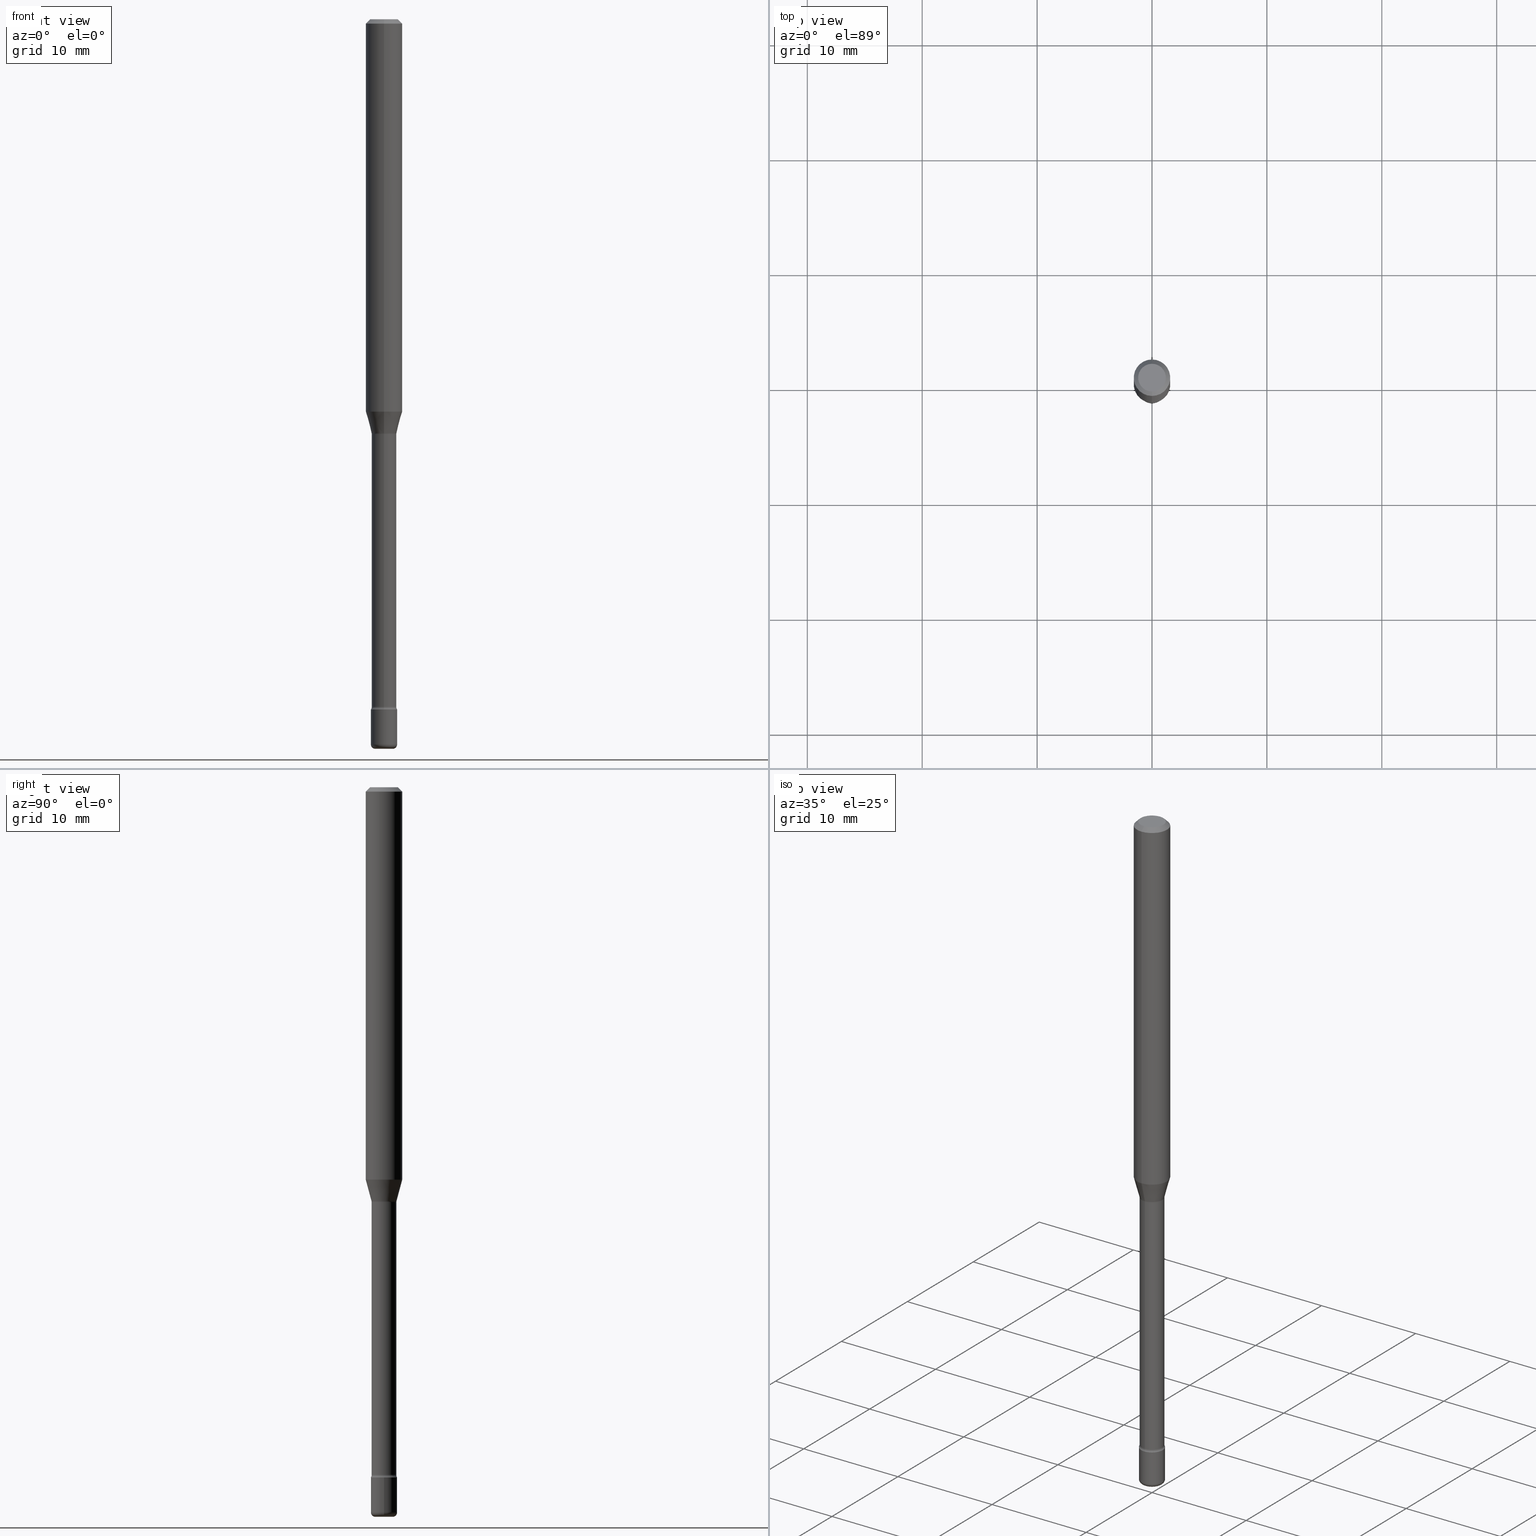
[diagram: canonical four-view strip — front | top / right | iso, engineering-drawing reading convention]
A machine part, canonical four-view strip (front | top / right | iso — engineering-drawing reading convention). The complete STEP part file that produces these views, byte-faithful:
ISO-10303-21;
HEADER;
FILE_DESCRIPTION (( 'STEP AP203' ),
    '1' );
FILE_NAME ('08856.STEP',
    '2024-03-06T20:06:08',
    ( '' ),
    ( '' ),
    'SwSTEP 2.0',
    'SolidWorks 2023',
    '' );
FILE_SCHEMA (( 'CONFIG_CONTROL_DESIGN' ));
ENDSEC;

DATA;
#1 = FACE_OUTER_BOUND ( 'NONE', #365, .T. ) ;
#2 = EDGE_LOOP ( 'NONE', ( #99, #440, #237, #569 ) ) ;
#3 = CARTESIAN_POINT ( 'NONE',  ( 3.840629472727447874E-16, 0.04750000000000000749, -1.929345507921889422E-16 ) ) ;
#4 = CIRCLE ( 'NONE', #549, 0.06250000000000000000 ) ;
#5 =( GEOMETRIC_REPRESENTATION_CONTEXT ( 3 ) GLOBAL_UNCERTAINTY_ASSIGNED_CONTEXT ( ( #46 ) ) GLOBAL_UNIT_ASSIGNED_CONTEXT ( ( #81, #465, #517 ) ) REPRESENTATION_CONTEXT ( 'NONE', 'WORKASPACE' ) );
#6 = EDGE_LOOP ( 'NONE', ( #272, #552 ) ) ;
#7 = CC_DESIGN_PERSON_AND_ORGANIZATION_ASSIGNMENT ( #475, #470, ( #209 ) ) ;
#8 = DIRECTION ( 'NONE',  ( -2.445468806185136597E-29, 3.491481338843145583E-15, 1.000000000000000000 ) ) ;
#9 = ORIENTED_EDGE ( 'NONE', *, *, #148, .F. ) ;
#10 = FACE_OUTER_BOUND ( 'NONE', #107, .T. ) ;
#11 = CYLINDRICAL_SURFACE ( 'NONE', #521, 0.04229999999999999732 ) ;
#12 = CARTESIAN_POINT ( 'NONE',  ( -4.001237614313655264E-16, -0.05730000000000824711, -2.356414547187247077 ) ) ;
#13 = LINE ( 'NONE', #194, #84 ) ;
#14 = CIRCLE ( 'NONE', #21, 0.04499999999999999833 ) ;
#15 = CIRCLE ( 'NONE', #382, 0.01500000000000001853 ) ;
#16 = ADVANCED_FACE ( 'NONE', ( #408 ), #482, .T. ) ;
#17 = CIRCLE ( 'NONE', #426, 0.04281111260566398957 ) ;
#18 = DIRECTION ( 'NONE',  ( -2.445411864812793917E-29, 3.491562882129241838E-15, 1.000000000000000000 ) ) ;
#19 = DIRECTION ( 'NONE',  ( -2.445411864812793917E-29, 3.491562882129241838E-15, 1.000000000000000000 ) ) ;
#20 = DIRECTION ( 'NONE',  ( -2.445411864812793917E-29, 3.491562882129241838E-15, 1.000000000000000000 ) ) ;
#21 = AXIS2_PLACEMENT_3D ( 'NONE', #287, #18, #454 ) ;
#22 = EDGE_CURVE ( 'NONE', #60, #274, #14, .T. ) ;
#23 = DIRECTION ( 'NONE',  ( 2.445411864812793917E-29, -3.491562882129241838E-15, -1.000000000000000000 ) ) ;
#24 = DIRECTION ( 'NONE',  ( -6.982962677686265133E-15, -1.000000000000000000, 6.381165607227957288E-15 ) ) ;
#25 = PLANE ( 'NONE',  #293 ) ;
#26 = VERTEX_POINT ( 'NONE', #185 ) ;
#27 = DIRECTION ( 'NONE',  ( -2.445411864812793637E-29, 3.491562882129241838E-15, 1.000000000000000000 ) ) ;
#28 = EDGE_CURVE ( 'NONE', #349, #506, #13, .T. ) ;
#29 = CALENDAR_DATE ( 2024, 6, 3 ) ;
#30 = AXIS2_PLACEMENT_3D ( 'NONE', #208, #111, #300 ) ;
#31 = CARTESIAN_POINT ( 'NONE',  ( 4.440892098500956497E-16, 0.06249999999999993755, -0.01500000000000024578 ) ) ;
#32 = VERTEX_POINT ( 'NONE', #547 ) ;
#33 = PERSON_AND_ORGANIZATION_ROLE ( 'classification_officer' ) ;
#34 = CARTESIAN_POINT ( 'NONE',  ( -1.169113584055446105E-44, 1.669184350826100908E-30, 4.780733988912460139E-16 ) ) ;
#35 = PERSON_AND_ORGANIZATION_ROLE ( 'creator' ) ;
#36 = DIRECTION ( 'NONE',  ( -2.445411864812793917E-29, 3.491562882129241838E-15, 1.000000000000000000 ) ) ;
#37 = VERTEX_POINT ( 'NONE', #190 ) ;
#38 = COORDINATED_UNIVERSAL_TIME_OFFSET ( 5, 0, .BEHIND. ) ;
#39 = AXIS2_PLACEMENT_3D ( 'NONE', #164, #63, #297 ) ;
#40 = ORIENTED_EDGE ( 'NONE', *, *, #193, .F. ) ;
#41 = DIRECTION ( 'NONE',  ( -2.445411864812793917E-29, 3.491562882129241838E-15, 1.000000000000000000 ) ) ;
#42 = EDGE_LOOP ( 'NONE', ( #40, #304, #347, #83 ) ) ;
#43 = FACE_OUTER_BOUND ( 'NONE', #314, .T. ) ;
#44 = EDGE_LOOP ( 'NONE', ( #480, #221 ) ) ;
#45 = APPROVAL ( #305, 'UNSPECIFIED' ) ;
#46 = UNCERTAINTY_MEASURE_WITH_UNIT (LENGTH_MEASURE( 1.000000000000000082E-05 ), #81, 'distance_accuracy_value', 'NONE');
#47 = CIRCLE ( 'NONE', #504, 0.04499999999999999833 ) ;
#48 = DIRECTION ( 'NONE',  ( -2.445411864812793917E-29, 3.491562882129241838E-15, 1.000000000000000000 ) ) ;
#49 = CIRCLE ( 'NONE', #302, 0.02999999999999999542 ) ;
#50 = ORIENTED_EDGE ( 'NONE', *, *, #212, .F. ) ;
#51 = CYLINDRICAL_SURFACE ( 'NONE', #255, 0.04229999999999999732 ) ;
#52 = DIRECTION ( 'NONE',  ( 1.000000000000000000, -6.982962677686237523E-15, 0.000000000000000000 ) ) ;
#53 = CARTESIAN_POINT ( 'NONE',  ( 6.076989983370064174E-29, -8.676331127025216680E-15, -2.484999999999999876 ) ) ;
#54 = ORIENTED_EDGE ( 'NONE', *, *, #572, .F. ) ;
#55 = DIRECTION ( 'NONE',  ( 1.000000000000000000, -7.105427357601001070E-15, 4.926316507159325352E-29 ) ) ;
#56 = AXIS2_PLACEMENT_3D ( 'NONE', #460, #298, #331 ) ;
#57 = DIRECTION ( 'NONE',  ( -6.982962677686265133E-15, -1.000000000000000000, 3.491562882129241838E-15 ) ) ;
#58 = AXIS2_PLACEMENT_3D ( 'NONE', #88, #36, #220 ) ;
#59 = LOCAL_TIME ( 15, 6, 8.000000000000000000, #344 ) ;
#60 = VERTEX_POINT ( 'NONE', #369 ) ;
#61 = CARTESIAN_POINT ( 'NONE',  ( -4.001237614313882555E-16, -0.05730000000000497196, -1.421974787463810896 ) ) ;
#62 = CC_DESIGN_PERSON_AND_ORGANIZATION_ASSIGNMENT ( #299, #341, ( #277 ) ) ;
#63 = DIRECTION ( 'NONE',  ( -2.445411864812793917E-29, 3.491562882129241838E-15, 1.000000000000000000 ) ) ;
#64 = CIRCLE ( 'NONE', #218, 0.01500000000000001853 ) ;
#65 = LOCAL_TIME ( 15, 6, 8.000000000000000000, #421 ) ;
#66 = DIRECTION ( 'NONE',  ( -6.982962677686263555E-15, -1.000000000000000000, 0.000000000000000000 ) ) ;
#67 = FACE_OUTER_BOUND ( 'NONE', #155, .T. ) ;
#68 = APPLICATION_PROTOCOL_DEFINITION ( 'international standard', 'config_control_design', 1994, #350 ) ;
#69 = CARTESIAN_POINT ( 'NONE',  ( 0.000000000000000000, 0.000000000000000000, 0.000000000000000000 ) ) ;
#70 = EDGE_CURVE ( 'NONE', #394, #130, #47, .T. ) ;
#71 = ORIENTED_EDGE ( 'NONE', *, *, #496, .F. ) ;
#72 = COORDINATED_UNIVERSAL_TIME_OFFSET ( 5, 0, .BEHIND. ) ;
#73 = FACE_OUTER_BOUND ( 'NONE', #6, .T. ) ;
#74 = DATE_AND_TIME ( #556, #229 ) ;
#75 = CIRCLE ( 'NONE', #159, 0.04229999999999999732 ) ;
#76 = CC_DESIGN_APPROVAL ( #45, ( #458 ) ) ;
#77 = CARTESIAN_POINT ( 'NONE',  ( 5.762538269587286723E-29, -8.227377418082795508E-15, -2.356414547187247521 ) ) ;
#78 = EDGE_CURVE ( 'NONE', #269, #80, #253, .T. ) ;
#79 = DIRECTION ( 'NONE',  ( -2.445468806185136597E-29, 3.491481338843145583E-15, 1.000000000000000000 ) ) ;
#80 = VERTEX_POINT ( 'NONE', #373 ) ;
#81 =( CONVERSION_BASED_UNIT ( 'INCH', #217 ) LENGTH_UNIT ( ) NAMED_UNIT ( #563 ) );
#82 = LINE ( 'NONE', #259, #228 ) ;
#83 = ORIENTED_EDGE ( 'NONE', *, *, #534, .F. ) ;
#84 = VECTOR ( 'NONE', #362, 39.37007874015748143 ) ;
#85 = TOROIDAL_SURFACE ( 'NONE', #95, 0.02999999999999999542, 0.01500000000000040364 ) ;
#86 = DIRECTION ( 'NONE',  ( -6.982962677686265922E-15, -1.000000000000000000, 3.491562882129241838E-15 ) ) ;
#87 = EDGE_LOOP ( 'NONE', ( #169, #309, #128, #436 ) ) ;
#88 = CARTESIAN_POINT ( 'NONE',  ( 3.467820229272656090E-29, -4.951359142666238841E-15, -1.418092501787273196 ) ) ;
#89 = ORIENTED_EDGE ( 'NONE', *, *, #534, .T. ) ;
#90 = EDGE_CURVE ( 'NONE', #269, #165, #241, .T. ) ;
#91 = FACE_OUTER_BOUND ( 'NONE', #226, .T. ) ;
#92 = VERTEX_POINT ( 'NONE', #372 ) ;
#93 = VECTOR ( 'NONE', #147, 39.37007874015748143 ) ;
#94 = DIRECTION ( 'NONE',  ( 7.105427357600998703E-15, 1.000000000000000000, 0.000000000000000000 ) ) ;
#95 = AXIS2_PLACEMENT_3D ( 'NONE', #359, #267, #527 ) ;
#96 = CARTESIAN_POINT ( 'NONE',  ( 3.668117797219197392E-31, -5.237344323193873357E-17, -0.01500000000000002720 ) ) ;
#97 = EDGE_CURVE ( 'NONE', #80, #398, #140, .T. ) ;
#98 = CARTESIAN_POINT ( 'NONE',  ( -4.364351673553912750E-16, -0.06250000000000005551, -0.01499999999999981036 ) ) ;
#99 = ORIENTED_EDGE ( 'NONE', *, *, #275, .F. ) ;
#100 = EDGE_CURVE ( 'NONE', #443, #445, #555, .T. ) ;
#101 = CARTESIAN_POINT ( 'NONE',  ( 3.668117797219197392E-31, -5.237344323193873357E-17, -0.01500000000000002720 ) ) ;
#102 = DIRECTION ( 'NONE',  ( -2.445468806185136597E-29, 3.491481338843145583E-15, 1.000000000000000000 ) ) ;
#103 = CARTESIAN_POINT ( 'NONE',  ( 3.005595772265801930E-16, 0.04229999999999504989, -1.421974787463811563 ) ) ;
#104 = AXIS2_PLACEMENT_3D ( 'NONE', #425, #516, #467 ) ;
#105 = DIRECTION ( 'NONE',  ( -2.445468806185136597E-29, 3.491481338843145583E-15, 1.000000000000000000 ) ) ;
#106 = AXIS2_PLACEMENT_3D ( 'NONE', #469, #23, #330 ) ;
#107 = EDGE_LOOP ( 'NONE', ( #477, #548, #9, #71 ) ) ;
#108 = ADVANCED_FACE ( 'NONE', ( #234 ), #11, .T. ) ;
#109 = CARTESIAN_POINT ( 'NONE',  ( 2.094888803306491085E-16, 0.02999999999999126629, -2.500000000000000000 ) ) ;
#110 = EDGE_LOOP ( 'NONE', ( #145, #182, #519, #121 ) ) ;
#111 = DIRECTION ( 'NONE',  ( -2.445411864812793917E-29, 3.491562882129241838E-15, 1.000000000000000000 ) ) ;
#112 = CONICAL_SURFACE ( 'NONE', #58, 0.04281111260566398957, 0.2617993877991505736 ) ;
#113 = APPROVAL_DATE_TIME ( #511, #502 ) ;
#114 = ADVANCED_FACE ( 'NONE', ( #562 ), #25, .F. ) ;
#115 = CYLINDRICAL_SURFACE ( 'NONE', #310, 0.04499999999999999833 ) ;
#116 = APPROVAL_ROLE ( '' ) ;
#117 = DIRECTION ( 'NONE',  ( 2.445411864812793637E-29, -3.491562882129241838E-15, -1.000000000000000000 ) ) ;
#118 = PERSON_AND_ORGANIZATION_ROLE ( 'creator' ) ;
#119 = DIRECTION ( 'NONE',  ( -6.982962677686266711E-15, -1.000000000000000000, 3.491562882129241049E-15 ) ) ;
#120 = EDGE_CURVE ( 'NONE', #443, #37, #434, .T. ) ;
#121 = ORIENTED_EDGE ( 'NONE', *, *, #90, .F. ) ;
#122 = CONICAL_SURFACE ( 'NONE', #106, 0.06250000000000000000, 0.7853981633974480570 ) ;
#123 = AXIS2_PLACEMENT_3D ( 'NONE', #540, #141, #319 ) ;
#124 = DIRECTION ( 'NONE',  ( -2.445411864812793917E-29, 3.491562882129241838E-15, 1.000000000000000000 ) ) ;
#125 = ORIENTED_EDGE ( 'NONE', *, *, #439, .F. ) ;
#126 = EDGE_CURVE ( 'NONE', #130, #394, #132, .T. ) ;
#127 = DIRECTION ( 'NONE',  ( 1.000000000000000000, -6.982962677686266711E-15, 4.876176775795935793E-29 ) ) ;
#128 = ORIENTED_EDGE ( 'NONE', *, *, #496, .T. ) ;
#129 = CARTESIAN_POINT ( 'NONE',  ( 4.071409875905721427E-16, 0.05729999999999503546, -1.421974787463811563 ) ) ;
#130 = VERTEX_POINT ( 'NONE', #201 ) ;
#131 = APPROVAL_DATE_TIME ( #390, #409 ) ;
#132 = CIRCLE ( 'NONE', #206, 0.04499999999999999833 ) ;
#133 = AXIS2_PLACEMENT_3D ( 'NONE', #109, #376, #289 ) ;
#134 = AXIS2_PLACEMENT_3D ( 'NONE', #101, #282, #453 ) ;
#135 = ADVANCED_FACE ( 'NONE', ( #418 ), #342, .T. ) ;
#136 = ORIENTED_EDGE ( 'NONE', *, *, #28, .T. ) ;
#137 = CARTESIAN_POINT ( 'NONE',  ( 3.101519041593414751E-16, 0.04229999999999176780, -2.356414547187247965 ) ) ;
#138 = ORIENTED_EDGE ( 'NONE', *, *, #357, .T. ) ;
#139 = LINE ( 'NONE', #239, #494 ) ;
#140 = LINE ( 'NONE', #231, #93 ) ;
#141 = DIRECTION ( 'NONE',  ( -2.445411864812793917E-29, 3.491562882129241838E-15, 1.000000000000000000 ) ) ;
#142 = CIRCLE ( 'NONE', #435, 0.06250000000000000000 ) ;
#143 = DIRECTION ( 'NONE',  ( 2.445411864812793917E-29, -3.491562882129241838E-15, -1.000000000000000000 ) ) ;
#144 = DIRECTION ( 'NONE',  ( -2.445411864812793917E-29, 3.491562882129241838E-15, 1.000000000000000000 ) ) ;
#145 = ORIENTED_EDGE ( 'NONE', *, *, #512, .F. ) ;
#146 = DIRECTION ( 'NONE',  ( -2.445468806185136597E-29, 3.491481338843145583E-15, 1.000000000000000000 ) ) ;
#147 = DIRECTION ( 'NONE',  ( -4.851104656540962697E-15, -0.7071067811865497932, -0.7071067811865452413 ) ) ;
#148 = EDGE_CURVE ( 'NONE', #26, #37, #529, .T. ) ;
#149 = CARTESIAN_POINT ( 'NONE',  ( 6.620752579593885833E-46, -9.460906030875025688E-32, -2.708531389104991304E-17 ) ) ;
#150 = LOCAL_TIME ( 15, 6, 8.000000000000000000, #72 ) ;
#151 = DIRECTION ( 'NONE',  ( -2.445411864812793917E-29, 3.491562882129241838E-15, 1.000000000000000000 ) ) ;
#152 = EDGE_LOOP ( 'NONE', ( #486, #544, #89, #404 ) ) ;
#153 = DIRECTION ( 'NONE',  ( 6.982962677686265922E-15, 1.000000000000000000, -3.491562882129241838E-15 ) ) ;
#154 = EDGE_CURVE ( 'NONE', #32, #457, #383, .T. ) ;
#155 = EDGE_LOOP ( 'NONE', ( #493, #332 ) ) ;
#156 = DATE_AND_TIME ( #257, #65 ) ;
#157 = CARTESIAN_POINT ( 'NONE',  ( -4.364351673553916201E-16, -0.06250000000000000000, 6.962960790243237274E-16 ) ) ;
#158 = VECTOR ( 'NONE', #192, 39.37007874015748143 ) ;
#159 = AXIS2_PLACEMENT_3D ( 'NONE', #172, #483, #348 ) ;
#160 = MANIFOLD_SOLID_BREP ( 'Body-Move/Copy2[1]', #301 ) ;
#161 = APPLICATION_PROTOCOL_DEFINITION ( 'international standard', 'config_control_design', 1994, #437 ) ;
#162 = EDGE_CURVE ( 'NONE', #26, #130, #422, .T. ) ;
#163 = DIRECTION ( 'NONE',  ( -2.445411864812793917E-29, 3.491562882129241838E-15, 1.000000000000000000 ) ) ;
#164 = CARTESIAN_POINT ( 'NONE',  ( 5.783399060282257641E-29, -8.257546216235657656E-15, -2.365000000000000213 ) ) ;
#165 = VERTEX_POINT ( 'NONE', #31 ) ;
#166 = APPROVAL_ROLE ( '' ) ;
#167 = DIRECTION ( 'NONE',  ( -6.982962677686265922E-15, -1.000000000000000000, 4.370956789862821150E-15 ) ) ;
#168 = CC_DESIGN_DATE_AND_TIME_ASSIGNMENT ( #211, #214, ( #327 ) ) ;
#169 = ORIENTED_EDGE ( 'NONE', *, *, #120, .F. ) ;
#170 = DATE_TIME_ROLE ( 'creation_date' ) ;
#171 = ORGANIZATION ( 'UNSPECIFIED', 'UNSPECIFIED', '' ) ;
#172 = CARTESIAN_POINT ( 'NONE',  ( 5.762404092109162712E-29, -8.227569567868378496E-15, -2.356414547187247521 ) ) ;
#173 = ORIENTED_EDGE ( 'NONE', *, *, #271, .T. ) ;
#174 = MANIFOLD_SOLID_BREP ( 'Body-Move/Copy2[2]', #334 ) ;
#175 = DIRECTION ( 'NONE',  ( -6.982962677686265922E-15, -1.000000000000000000, 3.491562882129241838E-15 ) ) ;
#176 = ORIENTED_EDGE ( 'NONE', *, *, #78, .F. ) ;
#177 = ADVANCED_FACE ( 'NONE', ( #73 ), #244, .F. ) ;
#178 = CARTESIAN_POINT ( 'NONE',  ( 0.000000000000000000, 0.000000000000000000, 0.000000000000000000 ) ) ;
#179 = ORIENTED_EDGE ( 'NONE', *, *, #28, .F. ) ;
#180 = AXIS2_PLACEMENT_3D ( 'NONE', #245, #151, #419 ) ;
#181 = AXIS2_PLACEMENT_3D ( 'NONE', #322, #364, #499 ) ;
#182 = ORIENTED_EDGE ( 'NONE', *, *, #97, .T. ) ;
#183 = ADVANCED_FACE ( 'NONE', ( #558 ), #568, .T. ) ;
#184 = LINE ( 'NONE', #230, #522 ) ;
#185 = CARTESIAN_POINT ( 'NONE',  ( 0.04500000000000019956, -8.990564447521098367E-15, -2.484999999999999876 ) ) ;
#186 = DIRECTION ( 'NONE',  ( -2.445411864812793917E-29, 3.491562882129241838E-15, 1.000000000000000000 ) ) ;
#187 = CARTESIAN_POINT ( 'NONE',  ( -1.169113584055446105E-44, 1.669184350826100908E-30, 4.780733988912460139E-16 ) ) ;
#188 = DIRECTION ( 'NONE',  ( -1.000000000000000000, 6.982962677686265922E-15, -4.883557194083112340E-29 ) ) ;
#189 = TOROIDAL_SURFACE ( 'NONE', #326, 0.05730000000000000371, 0.01500000000000002373 ) ;
#190 = CARTESIAN_POINT ( 'NONE',  ( -0.04500000000000019956, -8.356586895933170524E-15, -2.484999999999999876 ) ) ;
#191 = DIRECTION ( 'NONE',  ( -2.445411864812793917E-29, 3.491562882129241838E-15, 1.000000000000000000 ) ) ;
#192 = DIRECTION ( 'NONE',  ( 4.937700262164546464E-15, 0.7071067811865449082, -0.7071067811865501263 ) ) ;
#193 = EDGE_CURVE ( 'NONE', #349, #286, #393, .T. ) ;
#194 = CARTESIAN_POINT ( 'NONE',  ( 3.005595772265223103E-16, 0.04229999999999999732, 3.303802889771791745E-16 ) ) ;
#195 = CARTESIAN_POINT ( 'NONE',  ( -2.989484015155409328E-16, -0.04281111260566893700, -1.418092501787272974 ) ) ;
#196 = VECTOR ( 'NONE', #386, 39.37007874015748143 ) ;
#197 = EDGE_CURVE ( 'NONE', #457, #398, #415, .T. ) ;
#198 = CARTESIAN_POINT ( 'NONE',  ( -0.04499999999999999833, 3.197442310920450718E-16, -2.213520790614707560E-30 ) ) ;
#199 = ORIENTED_EDGE ( 'NONE', *, *, #197, .F. ) ;
#200 = CARTESIAN_POINT ( 'NONE',  ( 3.741402302838760433E-16, 0.04281111260565903520, -1.418092501787273418 ) ) ;
#201 = CARTESIAN_POINT ( 'NONE',  ( 0.04499999999999999833, -8.571586686859921733E-15, -2.365000000000000213 ) ) ;
#202 = CC_DESIGN_PERSON_AND_ORGANIZATION_ASSIGNMENT ( #478, #33, ( #327 ) ) ;
#203 = PRODUCT_DEFINITION_SHAPE ( 'NONE', 'NONE',  #458 ) ;
#204 = APPROVAL_DATE_TIME ( #74, #45 ) ;
#205 = FACE_OUTER_BOUND ( 'NONE', #110, .T. ) ;
#206 = AXIS2_PLACEMENT_3D ( 'NONE', #294, #553, #551 ) ;
#207 = CIRCLE ( 'NONE', #532, 0.01500000000000001853 ) ;
#208 = CARTESIAN_POINT ( 'NONE',  ( 3.467820229272656090E-29, -4.951359142666238841E-15, -1.418092501787273196 ) ) ;
#209 = PRODUCT ( '08856', '08856', '', ( #249 ) ) ;
#210 = ORIENTED_EDGE ( 'NONE', *, *, #392, .T. ) ;
#211 = DATE_AND_TIME ( #29, #487 ) ;
#212 = EDGE_CURVE ( 'NONE', #37, #394, #507, .T. ) ;
#213 = DIRECTION ( 'NONE',  ( -6.982962677686265922E-15, -1.000000000000000000, 3.491562882129242627E-15 ) ) ;
#214 = DATE_TIME_ROLE ( 'classification_date' ) ;
#215 = DIRECTION ( 'NONE',  ( -2.445411864812793917E-29, 3.491562882129241838E-15, 1.000000000000000000 ) ) ;
#216 = ORIENTED_EDGE ( 'NONE', *, *, #447, .T. ) ;
#217 = LENGTH_MEASURE_WITH_UNIT ( LENGTH_MEASURE( 0.02539999999999999897 ), #313 );
#218 = AXIS2_PLACEMENT_3D ( 'NONE', #451, #55, #94 ) ;
#219 = AXIS2_PLACEMENT_3D ( 'NONE', #385, #515, #261 ) ;
#220 = DIRECTION ( 'NONE',  ( -6.982962677686265133E-15, -1.000000000000000000, 6.381165607227957288E-15 ) ) ;
#221 = ORIENTED_EDGE ( 'NONE', *, *, #512, .T. ) ;
#222 = ADVANCED_FACE ( 'NONE', ( #205 ), #122, .T. ) ;
#223 = DIRECTION ( 'NONE',  ( -6.982962677686265922E-15, -1.000000000000000000, 3.491562882129241838E-15 ) ) ;
#224 = ORIENTED_EDGE ( 'NONE', *, *, #427, .F. ) ;
#225 = CYLINDRICAL_SURFACE ( 'NONE', #463, 0.06250000000000000000 ) ;
#226 = EDGE_LOOP ( 'NONE', ( #320, #508 ) ) ;
#227 = ADVANCED_FACE ( 'NONE', ( #67 ), #379, .T. ) ;
#228 = VECTOR ( 'NONE', #530, 39.37007874015748143 ) ;
#229 = LOCAL_TIME ( 15, 6, 8.000000000000000000, #38 ) ;
#230 = CARTESIAN_POINT ( 'NONE',  ( 3.041912507176566342E-16, 0.04281111260565903520, -1.418092501787273418 ) ) ;
#231 = CARTESIAN_POINT ( 'NONE',  ( -4.287811248607203282E-16, -0.06250000000000005551, -0.01499999999999981036 ) ) ;
#232 = EDGE_CURVE ( 'NONE', #274, #60, #374, .T. ) ;
#233 = DIRECTION ( 'NONE',  ( -6.982962677686266711E-15, -1.000000000000000000, 3.491562882129241049E-15 ) ) ;
#234 = FACE_OUTER_BOUND ( 'NONE', #533, .T. ) ;
#235 = SHAPE_DEFINITION_REPRESENTATION ( #203, #564 ) ;
#236 = DIRECTION ( 'NONE',  ( 1.000000000000000000, -6.982962677686209124E-15, 0.000000000000000000 ) ) ;
#237 = ORIENTED_EDGE ( 'NONE', *, *, #242, .T. ) ;
#238 = AXIS2_PLACEMENT_3D ( 'NONE', #61, #248, #335 ) ;
#239 = CARTESIAN_POINT ( 'NONE',  ( -2.953793212661290535E-16, -0.04229999999999999732, 6.257665088053130012E-16 ) ) ;
#240 = AXIS2_PLACEMENT_3D ( 'NONE', #340, #27, #377 ) ;
#241 = LINE ( 'NONE', #459, #158 ) ;
#242 = EDGE_CURVE ( 'NONE', #32, #312, #484, .T. ) ;
#243 = DIRECTION ( 'NONE',  ( 1.000000000000000000, -6.982962677686269077E-15, 0.000000000000000000 ) ) ;
#244 = PLANE ( 'NONE',  #240 ) ;
#245 = CARTESIAN_POINT ( 'NONE',  ( 5.762404092109162712E-29, -8.227569567868378496E-15, -2.356414547187247521 ) ) ;
#246 = AXIS2_PLACEMENT_3D ( 'NONE', #316, #407, #273 ) ;
#247 = DIRECTION ( 'NONE',  ( -6.982962677686265133E-15, -1.000000000000000000, 3.491562882129241838E-15 ) ) ;
#248 = DIRECTION ( 'NONE',  ( -1.000000000000000000, 6.982962677686265922E-15, -4.883557194083112340E-29 ) ) ;
#249 = MECHANICAL_CONTEXT ( 'NONE', #350, 'mechanical' ) ;
#250 = CARTESIAN_POINT ( 'NONE',  ( -1.169113584055446105E-44, 1.669184350826100908E-30, 4.780733988912460139E-16 ) ) ;
#251 = CALENDAR_DATE ( 2024, 6, 3 ) ;
#252 = CARTESIAN_POINT ( 'NONE',  ( 3.316907271900976589E-16, 0.04750000000000000749, 5.964480559895911369E-17 ) ) ;
#253 = CIRCLE ( 'NONE', #455, 0.04750000000000000749 ) ;
#254 = TOROIDAL_SURFACE ( 'NONE', #276, 0.05730000000000001759, 0.01500000000000001506 ) ;
#255 = AXIS2_PLACEMENT_3D ( 'NONE', #368, #444, #233 ) ;
#256 = ADVANCED_FACE ( 'NONE', ( #514 ), #115, .T. ) ;
#257 = CALENDAR_DATE ( 2024, 6, 3 ) ;
#258 = CARTESIAN_POINT ( 'NONE',  ( 3.197442310921029545E-16, 0.04499999999999174799, -2.365000000000000213 ) ) ;
#259 = CARTESIAN_POINT ( 'NONE',  ( 4.440892098500625669E-16, 0.06250000000000000000, 2.598507187581684484E-16 ) ) ;
#260 = ORIENTED_EDGE ( 'NONE', *, *, #197, .T. ) ;
#261 = DIRECTION ( 'NONE',  ( 1.000000000000000000, 0.000000000000000000, 0.000000000000000000 ) ) ;
#262 = ADVANCED_FACE ( 'NONE', ( #535 ), #112, .T. ) ;
#263 = DIRECTION ( 'NONE',  ( -2.445411864812793917E-29, 3.491562882129241838E-15, 1.000000000000000000 ) ) ;
#264 = ORIENTED_EDGE ( 'NONE', *, *, #162, .F. ) ;
#265 = AXIS2_PLACEMENT_3D ( 'NONE', #96, #143, #413 ) ;
#266 = AXIS2_PLACEMENT_3D ( 'NONE', #411, #186, #247 ) ;
#267 = DIRECTION ( 'NONE',  ( -2.445468806185136597E-29, 3.491481338843145583E-15, 1.000000000000000000 ) ) ;
#268 = EDGE_CURVE ( 'NONE', #312, #506, #410, .T. ) ;
#269 = VERTEX_POINT ( 'NONE', #3 ) ;
#270 = DIRECTION ( 'NONE',  ( -2.445411864812793917E-29, 3.491562882129241838E-15, 1.000000000000000000 ) ) ;
#271 = EDGE_CURVE ( 'NONE', #92, #165, #82, .T. ) ;
#272 = ORIENTED_EDGE ( 'NONE', *, *, #22, .F. ) ;
#273 = DIRECTION ( 'NONE',  ( 1.000000000000000000, -6.982962677686265922E-15, 4.876176775795935793E-29 ) ) ;
#274 = VERTEX_POINT ( 'NONE', #258 ) ;
#275 = EDGE_CURVE ( 'NONE', #567, #506, #15, .T. ) ;
#276 = AXIS2_PLACEMENT_3D ( 'NONE', #388, #263, #175 ) ;
#277 = PRODUCT_DEFINITION_FORMATION_WITH_SPECIFIED_SOURCE ( 'ANY', '', #209, .NOT_KNOWN. ) ;
#278 = FACE_OUTER_BOUND ( 'NONE', #524, .T. ) ;
#279 = ORIENTED_EDGE ( 'NONE', *, *, #268, .F. ) ;
#280 = CARTESIAN_POINT ( 'NONE',  ( -0.02999999999999999542, -8.436063711156501822E-15, -2.500000000000000000 ) ) ;
#281 = ORIENTED_EDGE ( 'NONE', *, *, #321, .T. ) ;
#282 = DIRECTION ( 'NONE',  ( -2.445411864812793917E-29, 3.491562882129241838E-15, 1.000000000000000000 ) ) ;
#283 = ADVANCED_FACE ( 'NONE', ( #488 ), #254, .F. ) ;
#284 = ORIENTED_EDGE ( 'NONE', *, *, #148, .T. ) ;
#285 = CIRCLE ( 'NONE', #366, 0.01500000000000040364 ) ;
#286 = VERTEX_POINT ( 'NONE', #570 ) ;
#287 = CARTESIAN_POINT ( 'NONE',  ( 5.783399060282257641E-29, -8.257546216235657656E-15, -2.365000000000000213 ) ) ;
#288 = EDGE_CURVE ( 'NONE', #165, #398, #346, .T. ) ;
#289 = DIRECTION ( 'NONE',  ( -1.000000000000000000, 6.982962677686265922E-15, -4.876176775795935793E-29 ) ) ;
#290 = ORIENTED_EDGE ( 'NONE', *, *, #242, .F. ) ;
#291 = DIRECTION ( 'NONE',  ( 1.000000000000000000, -6.982962677686237523E-15, 0.000000000000000000 ) ) ;
#292 = CC_DESIGN_DATE_AND_TIME_ASSIGNMENT ( #156, #170, ( #458 ) ) ;
#293 = AXIS2_PLACEMENT_3D ( 'NONE', #252, #117, #153 ) ;
#294 = CARTESIAN_POINT ( 'NONE',  ( 5.783533726627847872E-29, -8.257353366364040046E-15, -2.365000000000000213 ) ) ;
#295 = AXIS2_PLACEMENT_3D ( 'NONE', #53, #146, #449 ) ;
#296 = PERSON_AND_ORGANIZATION ( #329, #171 ) ;
#297 = DIRECTION ( 'NONE',  ( -6.982962677686265133E-15, -1.000000000000000000, 6.070773319253918263E-15 ) ) ;
#298 = DIRECTION ( 'NONE',  ( 7.105427357601001859E-15, 1.000000000000000000, -3.491481338843145583E-15 ) ) ;
#299 = PERSON_AND_ORGANIZATION ( #329, #171 ) ;
#300 = DIRECTION ( 'NONE',  ( -6.982962677686265133E-15, -1.000000000000000000, 6.381165607227957288E-15 ) ) ;
#301 = CLOSED_SHELL ( 'NONE', ( #256, #481, #466, #227, #315, #375 ) ) ;
#302 = AXIS2_PLACEMENT_3D ( 'NONE', #403, #8, #291 ) ;
#303 = DIRECTION ( 'NONE',  ( 7.105427357601001859E-15, 1.000000000000000000, 0.000000000000000000 ) ) ;
#304 = ORIENTED_EDGE ( 'NONE', *, *, #474, .T. ) ;
#305 = APPROVAL_STATUS ( 'not_yet_approved' ) ;
#306 = DIRECTION ( 'NONE',  ( 1.000000000000000000, -6.982962677686266711E-15, 4.876176775795935793E-29 ) ) ;
#307 = ORIENTED_EDGE ( 'NONE', *, *, #275, .T. ) ;
#308 = DIRECTION ( 'NONE',  ( -2.445411864812793917E-29, 3.491562882129241838E-15, 1.000000000000000000 ) ) ;
#309 = ORIENTED_EDGE ( 'NONE', *, *, #100, .T. ) ;
#310 = AXIS2_PLACEMENT_3D ( 'NONE', #69, #79, #127 ) ;
#311 = CARTESIAN_POINT ( 'NONE',  ( 3.467820229272656090E-29, -4.951359142666238841E-15, -1.418092501787273196 ) ) ;
#312 = VERTEX_POINT ( 'NONE', #353 ) ;
#313 =( LENGTH_UNIT ( ) NAMED_UNIT ( * ) SI_UNIT ( $, .METRE. ) );
#314 = EDGE_LOOP ( 'NONE', ( #216, #173, #54, #199 ) ) ;
#315 = ADVANCED_FACE ( 'NONE', ( #433 ), #85, .T. ) ;
#316 = CARTESIAN_POINT ( 'NONE',  ( 5.783533726627847872E-29, -8.257353366364040046E-15, -2.365000000000000213 ) ) ;
#317 = ORIENTED_EDGE ( 'NONE', *, *, #288, .F. ) ;
#318 = AXIS2_PLACEMENT_3D ( 'NONE', #77, #41, #223 ) ;
#319 = DIRECTION ( 'NONE',  ( -6.982962677686265922E-15, -1.000000000000000000, 3.491562882129241838E-15 ) ) ;
#320 = ORIENTED_EDGE ( 'NONE', *, *, #126, .T. ) ;
#321 = EDGE_CURVE ( 'NONE', #92, #457, #4, .T. ) ;
#322 = CARTESIAN_POINT ( 'NONE',  ( 6.076989983370064174E-29, -8.676331127025216680E-15, -2.484999999999999876 ) ) ;
#323 = ORIENTED_EDGE ( 'NONE', *, *, #162, .T. ) ;
#324 = CARTESIAN_POINT ( 'NONE',  ( 0.02999999999999999542, -8.885820007355803419E-15, -2.484999999999999876 ) ) ;
#325 = ORIENTED_EDGE ( 'NONE', *, *, #70, .F. ) ;
#326 = AXIS2_PLACEMENT_3D ( 'NONE', #431, #476, #86 ) ;
#327 = SECURITY_CLASSIFICATION ( '', '', #428 ) ;
#328 = DIRECTION ( 'NONE',  ( -2.445411864812793917E-29, 3.491562882129241838E-15, 1.000000000000000000 ) ) ;
#329 = PERSON ( 'UNSPECIFIED', 'UNSPECIFIED', 'UNSPECIFIED', ('UNSPECIFIED'), ('UNSPECIFIED'), ('UNSPECIFIED') ) ;
#330 = DIRECTION ( 'NONE',  ( 6.982962677686265922E-15, 1.000000000000000000, -3.483106191921935554E-15 ) ) ;
#331 = DIRECTION ( 'NONE',  ( -1.000000000000000000, 7.105427357600993970E-15, 0.000000000000000000 ) ) ;
#332 = ORIENTED_EDGE ( 'NONE', *, *, #100, .F. ) ;
#333 = APPROVAL_ROLE ( '' ) ;
#334 = CLOSED_SHELL ( 'NONE', ( #546, #108, #358, #222, #380, #183, #262, #135, #16, #114, #177, #283, #545, #337 ) ) ;
#335 = DIRECTION ( 'NONE',  ( -6.982962677686267499E-15, -1.000000000000000000, 0.000000000000000000 ) ) ;
#336 = APPROVAL_PERSON_ORGANIZATION ( #387, #409, #166 ) ;
#337 = ADVANCED_FACE ( 'NONE', ( #442 ), #189, .F. ) ;
#338 = PERSON_AND_ORGANIZATION ( #329, #171 ) ;
#339 = EDGE_CURVE ( 'NONE', #286, #349, #75, .T. ) ;
#340 = CARTESIAN_POINT ( 'NONE',  ( 3.142333204959397663E-16, 0.04499999999999174105, -2.365000000000000213 ) ) ;
#341 = PERSON_AND_ORGANIZATION_ROLE ( 'design_supplier' ) ;
#342 = CYLINDRICAL_SURFACE ( 'NONE', #355, 0.06250000000000000000 ) ;
#343 = ORIENTED_EDGE ( 'NONE', *, *, #97, .F. ) ;
#344 = COORDINATED_UNIVERSAL_TIME_OFFSET ( 5, 0, .BEHIND. ) ;
#345 = DIRECTION ( 'NONE',  ( -2.445468806185136597E-29, 3.491481338843145583E-15, 1.000000000000000000 ) ) ;
#346 = CIRCLE ( 'NONE', #456, 0.06250000000000000000 ) ;
#347 = ORIENTED_EDGE ( 'NONE', *, *, #232, .T. ) ;
#348 = DIRECTION ( 'NONE',  ( -6.982962677686266711E-15, -1.000000000000000000, 6.458269488567998169E-15 ) ) ;
#349 = VERTEX_POINT ( 'NONE', #137 ) ;
#350 = APPLICATION_CONTEXT ( 'configuration controlled 3d designs of mechanical parts and assemblies' ) ;
#351 = CARTESIAN_POINT ( 'NONE',  ( 3.288131541270923736E-29, -4.694799353130180945E-15, -1.344612573687109069 ) ) ;
#352 = ORIENTED_EDGE ( 'NONE', *, *, #288, .T. ) ;
#353 = CARTESIAN_POINT ( 'NONE',  ( -2.953793212660943436E-16, -0.04230000000000497945, -1.421974787463810896 ) ) ;
#354 = EDGE_LOOP ( 'NONE', ( #343, #176, #498, #352 ) ) ;
#355 = AXIS2_PLACEMENT_3D ( 'NONE', #250, #163, #509 ) ;
#356 = VECTOR ( 'NONE', #554, 39.37007874015748143 ) ;
#357 = EDGE_CURVE ( 'NONE', #32, #567, #485, .T. ) ;
#358 = ADVANCED_FACE ( 'NONE', ( #472 ), #401, .F. ) ;
#359 = CARTESIAN_POINT ( 'NONE',  ( 6.076989983370064174E-29, -8.676331127025216680E-15, -2.484999999999999876 ) ) ;
#360 = EDGE_LOOP ( 'NONE', ( #491, #281, #260, #317 ) ) ;
#361 = CARTESIAN_POINT ( 'NONE',  ( 0.02999999999999999542, -8.938192227438451682E-15, -2.500000000000000000 ) ) ;
#362 = DIRECTION ( 'NONE',  ( -2.445411864812793917E-29, 3.491562882129241838E-15, 1.000000000000000000 ) ) ;
#363 = DESIGN_CONTEXT ( 'detailed design', #437, 'design' ) ;
#364 = DIRECTION ( 'NONE',  ( -2.445468806185136597E-29, 3.491481338843145583E-15, 1.000000000000000000 ) ) ;
#365 = EDGE_LOOP ( 'NONE', ( #50, #500, #323, #325 ) ) ;
#366 = AXIS2_PLACEMENT_3D ( 'NONE', #324, #501, #236 ) ;
#367 = CC_DESIGN_SECURITY_CLASSIFICATION ( #327, ( #277 ) ) ;
#368 = CARTESIAN_POINT ( 'NONE',  ( -1.169113584055446105E-44, 1.669184350826100908E-30, 4.780733988912460139E-16 ) ) ;
#369 = CARTESIAN_POINT ( 'NONE',  ( -3.142333204958241982E-16, -0.04500000000000827644, -2.364999999999999769 ) ) ;
#370 = CC_DESIGN_PERSON_AND_ORGANIZATION_ASSIGNMENT ( #338, #35, ( #458 ) ) ;
#371 = DIRECTION ( 'NONE',  ( -6.982962677686265133E-15, -1.000000000000000000, 6.458269488567996591E-15 ) ) ;
#372 = CARTESIAN_POINT ( 'NONE',  ( 4.440892098500956497E-16, 0.06249999999999533706, -1.344612573687109514 ) ) ;
#373 = CARTESIAN_POINT ( 'NONE',  ( -3.773273898774340269E-16, -0.04750000000000000749, 1.387639230100891162E-16 ) ) ;
#374 = CIRCLE ( 'NONE', #39, 0.04499999999999999833 ) ;
#375 = ADVANCED_FACE ( 'NONE', ( #1 ), #525, .T. ) ;
#376 = DIRECTION ( 'NONE',  ( 2.438088387897960049E-29, -3.491481338843145188E-15, -1.000000000000000000 ) ) ;
#377 = DIRECTION ( 'NONE',  ( -6.982962677686265922E-15, -1.000000000000000000, 3.491562882129241838E-15 ) ) ;
#378 = DIRECTION ( 'NONE',  ( -6.982962677686265922E-15, -1.000000000000000000, 4.370956789862821150E-15 ) ) ;
#379 = PLANE ( 'NONE',  #133 ) ;
#380 = ADVANCED_FACE ( 'NONE', ( #43 ), #225, .T. ) ;
#381 = PERSON_AND_ORGANIZATION ( #329, #171 ) ;
#382 = AXIS2_PLACEMENT_3D ( 'NONE', #129, #391, #303 ) ;
#383 = LINE ( 'NONE', #195, #424 ) ;
#384 = APPROVAL_PERSON_ORGANIZATION ( #381, #502, #333 ) ;
#385 = CARTESIAN_POINT ( 'NONE',  ( 0.000000000000000000, 0.000000000000000000, 0.000000000000000000 ) ) ;
#386 = DIRECTION ( 'NONE',  ( -2.445468806185136877E-29, 3.491481338843145188E-15, 1.000000000000000000 ) ) ;
#387 = PERSON_AND_ORGANIZATION ( #329, #171 ) ;
#388 = CARTESIAN_POINT ( 'NONE',  ( 5.762538269587286723E-29, -8.227377418082795508E-15, -2.356414547187247521 ) ) ;
#389 = ORIENTED_EDGE ( 'NONE', *, *, #439, .T. ) ;
#390 = DATE_AND_TIME ( #520, #59 ) ;
#391 = DIRECTION ( 'NONE',  ( 1.000000000000000000, -7.105427357601001070E-15, 4.926316507159325352E-29 ) ) ;
#392 = EDGE_CURVE ( 'NONE', #506, #312, #416, .T. ) ;
#393 = CIRCLE ( 'NONE', #180, 0.04229999999999999732 ) ;
#394 = VERTEX_POINT ( 'NONE', #490 ) ;
#395 = DIRECTION ( 'NONE',  ( -2.445411864812793917E-29, 3.491562882129241838E-15, 1.000000000000000000 ) ) ;
#396 = EDGE_LOOP ( 'NONE', ( #224, #432, #528, #526 ) ) ;
#397 = CARTESIAN_POINT ( 'NONE',  ( 3.477314016728655540E-29, -4.964914387232260657E-15, -1.421974787463811118 ) ) ;
#398 = VERTEX_POINT ( 'NONE', #98 ) ;
#399 = DIRECTION ( 'NONE',  ( -6.982962677686265133E-15, -1.000000000000000000, 6.458269488567996591E-15 ) ) ;
#400 = ORIENTED_EDGE ( 'NONE', *, *, #154, .F. ) ;
#401 = TOROIDAL_SURFACE ( 'NONE', #318, 0.05730000000000001759, 0.01500000000000001506 ) ;
#402 = CC_DESIGN_APPROVAL ( #409, ( #327 ) ) ;
#403 = CARTESIAN_POINT ( 'NONE',  ( 6.113672015462842613E-29, -8.728703347107864943E-15, -2.500000000000000000 ) ) ;
#404 = ORIENTED_EDGE ( 'NONE', *, *, #22, .T. ) ;
#405 = CARTESIAN_POINT ( 'NONE',  ( -4.364351673553584879E-16, -0.06250000000000466294, -1.344612573687108847 ) ) ;
#406 = ORIENTED_EDGE ( 'NONE', *, *, #447, .F. ) ;
#407 = DIRECTION ( 'NONE',  ( -2.438088387897960049E-29, 3.491481338843145188E-15, 1.000000000000000000 ) ) ;
#408 = FACE_OUTER_BOUND ( 'NONE', #354, .T. ) ;
#409 = APPROVAL ( #565, 'UNSPECIFIED' ) ;
#410 = CIRCLE ( 'NONE', #505, 0.04230000000000001120 ) ;
#411 = CARTESIAN_POINT ( 'NONE',  ( 6.620752579593885833E-46, -9.460906030875025688E-32, -2.708531389104991304E-17 ) ) ;
#412 = ORIENTED_EDGE ( 'NONE', *, *, #560, .F. ) ;
#413 = DIRECTION ( 'NONE',  ( 6.982962677686265922E-15, 1.000000000000000000, -3.483106191921935554E-15 ) ) ;
#414 = EDGE_CURVE ( 'NONE', #445, #443, #49, .T. ) ;
#415 = LINE ( 'NONE', #157, #557 ) ;
#416 = CIRCLE ( 'NONE', #531, 0.04230000000000001120 ) ;
#417 = TOROIDAL_SURFACE ( 'NONE', #123, 0.05730000000000000371, 0.01500000000000002373 ) ;
#418 = FACE_OUTER_BOUND ( 'NONE', #360, .T. ) ;
#419 = DIRECTION ( 'NONE',  ( -6.982962677686266711E-15, -1.000000000000000000, 6.458269488567998169E-15 ) ) ;
#420 = ORIENTED_EDGE ( 'NONE', *, *, #126, .F. ) ;
#421 = COORDINATED_UNIVERSAL_TIME_OFFSET ( 5, 0, .BEHIND. ) ;
#422 = LINE ( 'NONE', #518, #356 ) ;
#423 = COORDINATED_UNIVERSAL_TIME_OFFSET ( 5, 0, .BEHIND. ) ;
#424 = VECTOR ( 'NONE', #464, 39.37007874015748854 ) ;
#425 = CARTESIAN_POINT ( 'NONE',  ( 6.076989983370064174E-29, -8.676331127025216680E-15, -2.484999999999999876 ) ) ;
#426 = AXIS2_PLACEMENT_3D ( 'NONE', #543, #144, #24 ) ;
#427 = EDGE_CURVE ( 'NONE', #567, #92, #184, .T. ) ;
#428 = SECURITY_CLASSIFICATION_LEVEL ( 'unclassified' ) ;
#429 = CARTESIAN_POINT ( 'NONE',  ( 3.668117797219197392E-31, -5.237344323193873357E-17, -0.01500000000000002720 ) ) ;
#430 = PERSON_AND_ORGANIZATION ( #329, #171 ) ;
#431 = CARTESIAN_POINT ( 'NONE',  ( 3.477394985924490148E-29, -4.964798434735345074E-15, -1.421974787463811118 ) ) ;
#432 = ORIENTED_EDGE ( 'NONE', *, *, #560, .T. ) ;
#433 = FACE_OUTER_BOUND ( 'NONE', #87, .T. ) ;
#434 = CIRCLE ( 'NONE', #56, 0.01500000000000040364 ) ;
#435 = AXIS2_PLACEMENT_3D ( 'NONE', #497, #48, #378 ) ;
#436 = ORIENTED_EDGE ( 'NONE', *, *, #561, .F. ) ;
#437 = APPLICATION_CONTEXT ( 'configuration controlled 3d designs of mechanical parts and assemblies' ) ;
#438 = DIRECTION ( 'NONE',  ( -6.982962677686265133E-15, -1.000000000000000000, 6.381165607227957288E-15 ) ) ;
#439 = EDGE_CURVE ( 'NONE', #286, #312, #139, .T. ) ;
#440 = ORIENTED_EDGE ( 'NONE', *, *, #357, .F. ) ;
#441 = PRODUCT_RELATED_PRODUCT_CATEGORY ( 'detail', '', ( #209 ) ) ;
#442 = FACE_OUTER_BOUND ( 'NONE', #2, .T. ) ;
#443 = VERTEX_POINT ( 'NONE', #280 ) ;
#444 = DIRECTION ( 'NONE',  ( -2.445411864812793917E-29, 3.491562882129241838E-15, 1.000000000000000000 ) ) ;
#445 = VERTEX_POINT ( 'NONE', #361 ) ;
#446 = AXIS2_PLACEMENT_3D ( 'NONE', #311, #270, #438 ) ;
#447 = EDGE_CURVE ( 'NONE', #457, #92, #142, .T. ) ;
#448 = CC_DESIGN_APPROVAL ( #502, ( #277 ) ) ;
#449 = DIRECTION ( 'NONE',  ( 1.000000000000000000, -6.982962677686270655E-15, 4.883557194083114022E-29 ) ) ;
#450 = CARTESIAN_POINT ( 'NONE',  ( 5.783533726627847872E-29, -8.257353366364040046E-15, -2.365000000000000213 ) ) ;
#451 = CARTESIAN_POINT ( 'NONE',  ( 4.071409875905951183E-16, 0.05729999999999178806, -2.356414547187247965 ) ) ;
#452 = EDGE_LOOP ( 'NONE', ( #284, #571, #420, #264 ) ) ;
#453 = DIRECTION ( 'NONE',  ( -6.982962677686265922E-15, -1.000000000000000000, 3.483106191921935554E-15 ) ) ;
#454 = DIRECTION ( 'NONE',  ( -6.982962677686265133E-15, -1.000000000000000000, 6.070773319253918263E-15 ) ) ;
#455 = AXIS2_PLACEMENT_3D ( 'NONE', #149, #19, #57 ) ;
#456 = AXIS2_PLACEMENT_3D ( 'NONE', #429, #395, #566 ) ;
#457 = VERTEX_POINT ( 'NONE', #405 ) ;
#458 = PRODUCT_DEFINITION ( 'UNKNOWN', '', #277, #363 ) ;
#459 = CARTESIAN_POINT ( 'NONE',  ( 4.364351673553919652E-16, 0.06249999999999995143, -0.01500000000000024578 ) ) ;
#460 = CARTESIAN_POINT ( 'NONE',  ( -0.02999999999999999542, -8.463168306297186435E-15, -2.484999999999999876 ) ) ;
#461 = DIRECTION ( 'NONE',  ( 1.839019923739602287E-15, 0.2588190451025252359, 0.9659258262890670910 ) ) ;
#462 = AXIS2_PLACEMENT_3D ( 'NONE', #503, #105, #52 ) ;
#463 = AXIS2_PLACEMENT_3D ( 'NONE', #34, #479, #213 ) ;
#464 = DIRECTION ( 'NONE',  ( -1.807323732225332111E-15, -0.2588190451025184635, 0.9659258262890689783 ) ) ;
#465 =( NAMED_UNIT ( * ) PLANE_ANGLE_UNIT ( ) SI_UNIT ( $, .RADIAN. ) );
#466 = ADVANCED_FACE ( 'NONE', ( #91 ), #492, .T. ) ;
#467 = DIRECTION ( 'NONE',  ( 1.000000000000000000, -6.982962677686245411E-15, 0.000000000000000000 ) ) ;
#468 = APPROVAL_STATUS ( 'not_yet_approved' ) ;
#469 = CARTESIAN_POINT ( 'NONE',  ( 3.668117797219197392E-31, -5.237344323193873357E-17, -0.01500000000000002720 ) ) ;
#470 = PERSON_AND_ORGANIZATION_ROLE ( 'design_owner' ) ;
#471 = AXIS2_PLACEMENT_3D ( 'NONE', #178, #345, #306 ) ;
#472 = FACE_OUTER_BOUND ( 'NONE', #42, .T. ) ;
#473 = CIRCLE ( 'NONE', #181, 0.04500000000000000527 ) ;
#474 = EDGE_CURVE ( 'NONE', #349, #274, #64, .T. ) ;
#475 = PERSON_AND_ORGANIZATION ( #329, #171 ) ;
#476 = DIRECTION ( 'NONE',  ( -2.445411864812793917E-29, 3.491562882129241838E-15, 1.000000000000000000 ) ) ;
#477 = ORIENTED_EDGE ( 'NONE', *, *, #414, .T. ) ;
#478 = PERSON_AND_ORGANIZATION ( #329, #171 ) ;
#479 = DIRECTION ( 'NONE',  ( -2.445411864812793917E-29, 3.491562882129241838E-15, 1.000000000000000000 ) ) ;
#480 = ORIENTED_EDGE ( 'NONE', *, *, #78, .T. ) ;
#481 = ADVANCED_FACE ( 'NONE', ( #10 ), #542, .T. ) ;
#482 = CONICAL_SURFACE ( 'NONE', #265, 0.06250000000000000000, 0.7853981633974480570 ) ;
#483 = DIRECTION ( 'NONE',  ( -2.445411864812793917E-29, 3.491562882129241838E-15, 1.000000000000000000 ) ) ;
#484 = CIRCLE ( 'NONE', #238, 0.01500000000000001853 ) ;
#485 = CIRCLE ( 'NONE', #446, 0.04281111260566398957 ) ;
#486 = ORIENTED_EDGE ( 'NONE', *, *, #474, .F. ) ;
#487 = LOCAL_TIME ( 15, 6, 8.000000000000000000, #423 ) ;
#488 = FACE_OUTER_BOUND ( 'NONE', #152, .T. ) ;
#489 = ORIENTED_EDGE ( 'NONE', *, *, #193, .T. ) ;
#490 = CARTESIAN_POINT ( 'NONE',  ( -0.04499999999999999833, -8.147098015602583784E-15, -2.365000000000000213 ) ) ;
#491 = ORIENTED_EDGE ( 'NONE', *, *, #271, .F. ) ;
#492 = PLANE ( 'NONE',  #246 ) ;
#493 = ORIENTED_EDGE ( 'NONE', *, *, #414, .F. ) ;
#494 = VECTOR ( 'NONE', #191, 39.37007874015748143 ) ;
#495 = APPROVAL_PERSON_ORGANIZATION ( #430, #45, #116 ) ;
#496 = EDGE_CURVE ( 'NONE', #445, #26, #285, .T. ) ;
#497 = CARTESIAN_POINT ( 'NONE',  ( 3.288131541270923736E-29, -4.694799353130180945E-15, -1.344612573687109069 ) ) ;
#498 = ORIENTED_EDGE ( 'NONE', *, *, #90, .T. ) ;
#499 = DIRECTION ( 'NONE',  ( 1.000000000000000000, -6.982962677686245411E-15, 0.000000000000000000 ) ) ;
#500 = ORIENTED_EDGE ( 'NONE', *, *, #561, .T. ) ;
#501 = DIRECTION ( 'NONE',  ( -6.982962677686266711E-15, -1.000000000000000000, 3.491481338843145583E-15 ) ) ;
#502 = APPROVAL ( #468, 'UNSPECIFIED' ) ;
#503 = CARTESIAN_POINT ( 'NONE',  ( 6.113672015462842613E-29, -8.728703347107864943E-15, -2.500000000000000000 ) ) ;
#504 = AXIS2_PLACEMENT_3D ( 'NONE', #450, #102, #243 ) ;
#505 = AXIS2_PLACEMENT_3D ( 'NONE', #397, #215, #399 ) ;
#506 = VERTEX_POINT ( 'NONE', #103 ) ;
#507 = LINE ( 'NONE', #198, #196 ) ;
#508 = ORIENTED_EDGE ( 'NONE', *, *, #70, .T. ) ;
#509 = DIRECTION ( 'NONE',  ( -6.982962677686265922E-15, -1.000000000000000000, 3.491562882129242627E-15 ) ) ;
#510 = EDGE_LOOP ( 'NONE', ( #412, #307, #210, #290 ) ) ;
#511 = DATE_AND_TIME ( #251, #150 ) ;
#512 = EDGE_CURVE ( 'NONE', #80, #269, #513, .T. ) ;
#513 = CIRCLE ( 'NONE', #266, 0.04750000000000000749 ) ;
#514 = FACE_OUTER_BOUND ( 'NONE', #452, .T. ) ;
#515 = DIRECTION ( 'NONE',  ( 0.000000000000000000, 0.000000000000000000, 1.000000000000000000 ) ) ;
#516 = DIRECTION ( 'NONE',  ( -2.445468806185136597E-29, 3.491481338843145583E-15, 1.000000000000000000 ) ) ;
#517 =( NAMED_UNIT ( * ) SI_UNIT ( $, .STERADIAN. ) SOLID_ANGLE_UNIT ( ) );
#518 = CARTESIAN_POINT ( 'NONE',  ( 0.04499999999999999833, -3.142333204958819823E-16, 2.194279549108170967E-30 ) ) ;
#519 = ORIENTED_EDGE ( 'NONE', *, *, #572, .T. ) ;
#520 = CALENDAR_DATE ( 2024, 6, 3 ) ;
#521 = AXIS2_PLACEMENT_3D ( 'NONE', #187, #328, #119 ) ;
#522 = VECTOR ( 'NONE', #461, 39.37007874015748143 ) ;
#523 = CARTESIAN_POINT ( 'NONE',  ( 3.477314016728655540E-29, -4.964914387232260657E-15, -1.421974787463811118 ) ) ;
#524 = EDGE_LOOP ( 'NONE', ( #179, #489, #389, #559 ) ) ;
#525 = CYLINDRICAL_SURFACE ( 'NONE', #471, 0.04499999999999999833 ) ;
#526 = ORIENTED_EDGE ( 'NONE', *, *, #321, .F. ) ;
#527 = DIRECTION ( 'NONE',  ( 1.000000000000000000, -6.982962677686270655E-15, 4.883557194083114022E-29 ) ) ;
#528 = ORIENTED_EDGE ( 'NONE', *, *, #154, .T. ) ;
#529 = CIRCLE ( 'NONE', #104, 0.04500000000000000527 ) ;
#530 = DIRECTION ( 'NONE',  ( -2.445411864812793917E-29, 3.491562882129241838E-15, 1.000000000000000000 ) ) ;
#531 = AXIS2_PLACEMENT_3D ( 'NONE', #523, #124, #371 ) ;
#532 = AXIS2_PLACEMENT_3D ( 'NONE', #12, #188, #66 ) ;
#533 = EDGE_LOOP ( 'NONE', ( #541, #136, #279, #125 ) ) ;
#534 = EDGE_CURVE ( 'NONE', #286, #60, #207, .T. ) ;
#535 = FACE_OUTER_BOUND ( 'NONE', #396, .T. ) ;
#536 = ORIENTED_EDGE ( 'NONE', *, *, #427, .T. ) ;
#537 = FACE_OUTER_BOUND ( 'NONE', #510, .T. ) ;
#538 = EDGE_LOOP ( 'NONE', ( #138, #536, #406, #400 ) ) ;
#539 = CC_DESIGN_PERSON_AND_ORGANIZATION_ASSIGNMENT ( #296, #118, ( #277 ) ) ;
#540 = CARTESIAN_POINT ( 'NONE',  ( 3.477394985924490148E-29, -4.964798434735345074E-15, -1.421974787463811118 ) ) ;
#541 = ORIENTED_EDGE ( 'NONE', *, *, #339, .T. ) ;
#542 = TOROIDAL_SURFACE ( 'NONE', #295, 0.02999999999999999542, 0.01500000000000040364 ) ;
#543 = CARTESIAN_POINT ( 'NONE',  ( 3.467820229272656090E-29, -4.951359142666238841E-15, -1.418092501787273196 ) ) ;
#544 = ORIENTED_EDGE ( 'NONE', *, *, #339, .F. ) ;
#545 = ADVANCED_FACE ( 'NONE', ( #278 ), #51, .T. ) ;
#546 = ADVANCED_FACE ( 'NONE', ( #537 ), #417, .F. ) ;
#547 = CARTESIAN_POINT ( 'NONE',  ( -2.989484015155409328E-16, -0.04281111260566893700, -1.418092501787272974 ) ) ;
#548 = ORIENTED_EDGE ( 'NONE', *, *, #120, .T. ) ;
#549 = AXIS2_PLACEMENT_3D ( 'NONE', #351, #308, #167 ) ;
#550 = CIRCLE ( 'NONE', #134, 0.06250000000000000000 ) ;
#551 = DIRECTION ( 'NONE',  ( 1.000000000000000000, -6.982962677686269077E-15, 0.000000000000000000 ) ) ;
#552 = ORIENTED_EDGE ( 'NONE', *, *, #232, .F. ) ;
#553 = DIRECTION ( 'NONE',  ( -2.445468806185136597E-29, 3.491481338843145583E-15, 1.000000000000000000 ) ) ;
#554 = DIRECTION ( 'NONE',  ( -2.445468806185136877E-29, 3.491481338843145188E-15, 1.000000000000000000 ) ) ;
#555 = CIRCLE ( 'NONE', #462, 0.02999999999999999542 ) ;
#556 = CALENDAR_DATE ( 2024, 6, 3 ) ;
#557 = VECTOR ( 'NONE', #20, 39.37007874015748143 ) ;
#558 = FACE_OUTER_BOUND ( 'NONE', #538, .T. ) ;
#559 = ORIENTED_EDGE ( 'NONE', *, *, #392, .F. ) ;
#560 = EDGE_CURVE ( 'NONE', #567, #32, #17, .T. ) ;
#561 = EDGE_CURVE ( 'NONE', #37, #26, #473, .T. ) ;
#562 = FACE_OUTER_BOUND ( 'NONE', #44, .T. ) ;
#563 = DIMENSIONAL_EXPONENTS ( 1.000000000000000000, 0.000000000000000000, 0.000000000000000000, 0.000000000000000000, 0.000000000000000000, 0.000000000000000000, 0.000000000000000000 ) ;
#564 = ADVANCED_BREP_SHAPE_REPRESENTATION ( '08856', ( #160, #174, #219 ), #5 ) ;
#565 = APPROVAL_STATUS ( 'not_yet_approved' ) ;
#566 = DIRECTION ( 'NONE',  ( -6.982962677686265922E-15, -1.000000000000000000, 3.483106191921935554E-15 ) ) ;
#567 = VERTEX_POINT ( 'NONE', #200 ) ;
#568 = CONICAL_SURFACE ( 'NONE', #30, 0.04281111260566398957, 0.2617993877991505736 ) ;
#569 = ORIENTED_EDGE ( 'NONE', *, *, #268, .T. ) ;
#570 = CARTESIAN_POINT ( 'NONE',  ( -2.953793212660714173E-16, -0.04230000000000822685, -2.356414547187247077 ) ) ;
#571 = ORIENTED_EDGE ( 'NONE', *, *, #212, .T. ) ;
#572 = EDGE_CURVE ( 'NONE', #398, #165, #550, .T. ) ;
ENDSEC;
END-ISO-10303-21;
